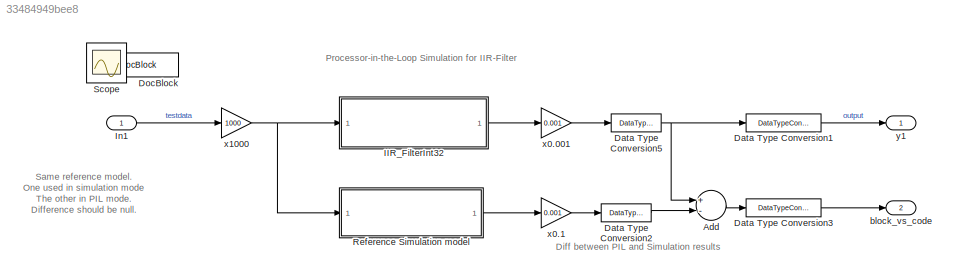
MODEL slx_33484949bee8
KIND model
CONFIG PreLoadFcn = run iir_startup;\nload('Test_PIL_IIR_Filter_config_ref.mat');\n
WORKSPACE source: MAT-file member
WORKSPACE MCOS: class17 (value not decoded)
BLOCK [Sum] Add
  InputSameDT = off
  Inputs = +-
  OutDataTypeStr = Inherit: Inherit via internal rule
  Ports = [2, 1]
  SaturateOnIntegerOverflow = off
BLOCK [DataTypeConversion] Data Type Conversion1
  OutDataTypeStr = double
BLOCK [DataTypeConversion] Data Type Conversion2
  OutDataTypeStr = double
BLOCK [DataTypeConversion] Data Type Conversion3
  OutDataTypeStr = double
BLOCK [DataTypeConversion] Data Type Conversion5
  OutDataTypeStr = double
BLOCK [Reference] DocBlock  REF=simulink/Model-Wide
Utilities/DocBlock
  Ports = []
  SourceBlock = simulink/Model-Wide\nUtilities/DocBlock
  SourceProductBaseCode = SL
  SourceProductName = Simulink
  SourceType = DocBlock
  UserDataPersistent = on
BLOCK [ModelReference] IIR_FilterInt32
  ModelNameDialog = IIR_Filter_int32.slx
  ModelReferenceVersion = 1.115
  Ports = [1, 1]
BLOCK [Inport] In1
  IconDisplay = Port number
  Interpolate = off
  OutDataTypeStr = double
  PortDimensions = 1
  SampleTime = 0.001
  SignalType = real
  VarSizeSig = No
BLOCK [ModelReference] Reference Simulation model
  ModelNameDialog = IIR_Filter_int32.slx
  ModelReferenceVersion = 1.115
  Ports = [1, 1]
BLOCK [Scope] Scope
  Floating = off
  IOType = viewer
  NumInputPorts = 1
  Ports = []
  ScopeSpecificationString = Simulink.scopes.TimeScopeBlockCfg('CurrentConfiguration', extmgr.ConfigurationSet(extmgr.Configuration('Core','General UI',true),extmgr.Configuration('Core','Source UI',true),extmgr.Configuration('Sources','WiredSimulink',true,'DataLoggingMaxPoints','7500','DataLoggingLimitDataPoints',true,'DataLoggingSaveFormat','Array','DataLoggingDecimation','1','DataLoggingDecimateData',true),extmgr.Configurat...<+3064ch>
BLOCK [Outport] block_vs_code
  IconDisplay = Port number
  Port = 2
BLOCK [Gain] x0.001
  Gain = 0.001
  OutDataTypeStr = Inherit: Inherit via internal rule
  ParamDataTypeStr = Inherit: Inherit via internal rule
  SaturateOnIntegerOverflow = off
BLOCK [Gain] x0.1
  Gain = 0.001
  OutDataTypeStr = Inherit: Inherit via internal rule
  ParamDataTypeStr = Inherit: Inherit via internal rule
  SaturateOnIntegerOverflow = off
BLOCK [Gain] x1000
  Gain = 1000
  OutDataTypeStr = int32
  OutMax = 2147483647
  OutMin = -2147483647-1
  ParamDataTypeStr = uint32
  SaturateOnIntegerOverflow = off
BLOCK [Outport] y1
  IconDisplay = Port number
ANNOTATION (root): Diff between PIL and Simulation results
ANNOTATION (root): Processor-in-the-Loop Simulation for IIR-Filter
ANNOTATION (root): Same reference model. One used in simulation mode The other in PIL mode. Difference should be null.
LINE Add:1 -> Data Type Conversion3:1
LINE Data Type Conversion1:1 -> y1:1
LINE Data Type Conversion2:1 -> Add:2
LINE Data Type Conversion3:1 -> block_vs_code:1
NET Data Type Conversion5:1 -> Add:1, Data Type Conversion1:1
LINE IIR_FilterInt32:1 -> x0.001:1
LINE In1:1 -> x1000:1
LINE Reference Simulation model:1 -> x0.1:1
LINE x0.001:1 -> Data Type Conversion5:1
LINE x0.1:1 -> Data Type Conversion2:1
NET x1000:1 -> IIR_FilterInt32:1, Reference Simulation model:1
note: NET lines group one-source signal fan-out (src -> all destinations, sorted); 1:1 wires keep LINE
